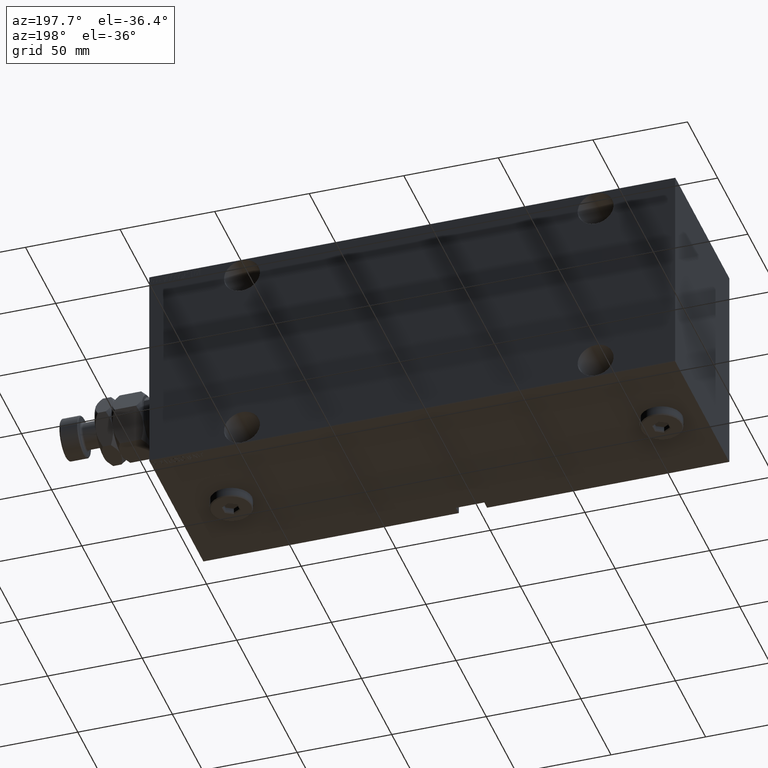
[diagram: clean part render]
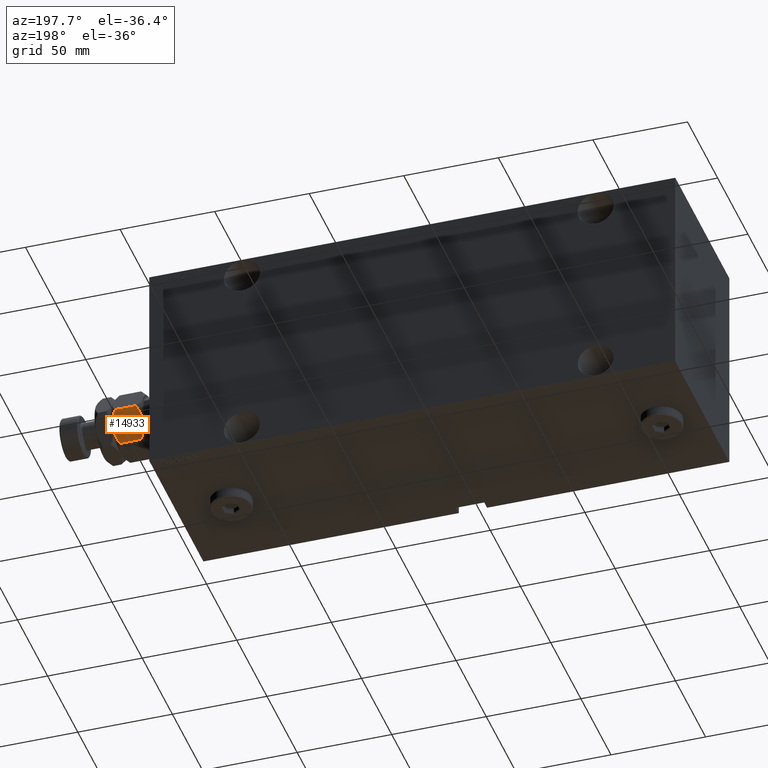
[diagram: same view with one face highlighted and labeled with its STEP entity id]
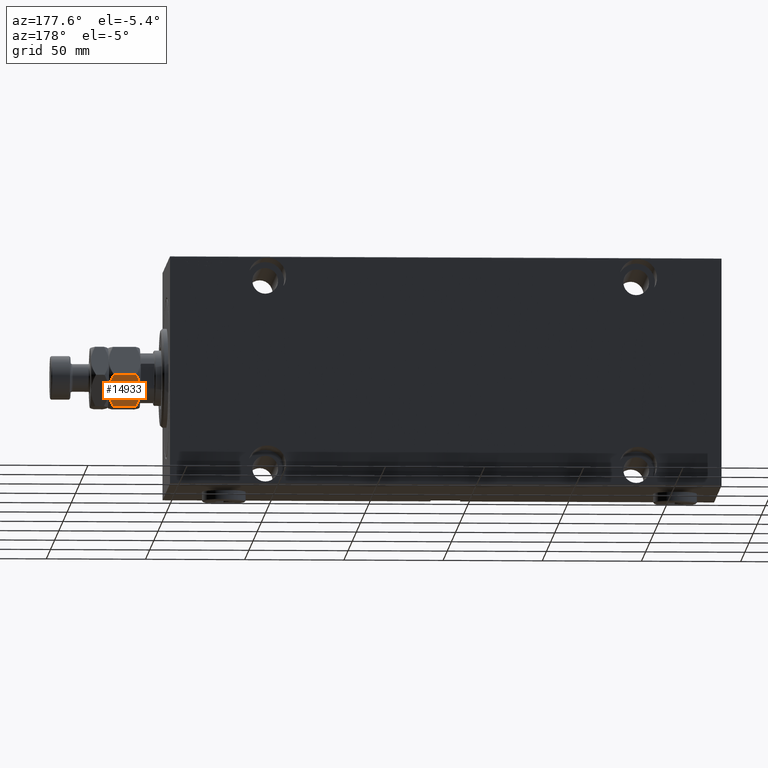
[diagram: same view with one face highlighted and labeled with its STEP entity id]
A machine part, auxiliary view. The second image highlights one B-rep face of the part: STEP entity #14933.
A second angle (auxiliary view) of the same face is appended — the face is thin or edge-on in the first view.
In plain terms, the highlighted planar face has unit normal (0, -0.866, 0.5).
Its self-contained STEP definition (entity closure, byte-faithful):
#678 = LINE ( 'NONE', #14636, #38389 ) ;
#949 = ORIENTED_EDGE ( 'NONE', *, *, #12603, .F. ) ;
#1134 = CARTESIAN_POINT ( 'NONE',  ( 7.500000000000000000, 12.99038105676657651, 16.00000000000000000 ) ) ;
#1572 = CARTESIAN_POINT ( 'NONE',  ( 1.176108425306640504, 16.64148155974179843, 1.641481559741787111 ) ) ;
#1598 = CARTESIAN_POINT ( 'NONE',  ( 4.913081180497409939, 14.48393933357810504, 15.76967007806078946 ) ) ;
#2377 = CARTESIAN_POINT ( 'NONE',  ( 8.156876182308252510, 12.61113341608665728, 16.00000000000000355 ) ) ;
#3698 = CARTESIAN_POINT ( 'NONE',  ( 10.75222765045651663, 11.11270654730956586, 15.55242859148697576 ) ) ;
#5004 = CARTESIAN_POINT ( 'NONE',  ( 8.804550678576910983, 12.23719837131869426, -5.031375706690542042E-16 ) ) ;
#5074 = CARTESIAN_POINT ( 'NONE',  ( 7.621669386706803087E-17, 17.32050807568877104, 2.320508075688761718 ) ) ;
#5747 = CARTESIAN_POINT ( 'NONE',  ( 7.621669386706803087E-17, 17.32050807568877104, 2.320508075688761718 ) ) ;
#5956 = DIRECTION ( 'NONE',  ( -0.4999999999999997780, -0.8660254037844388186, 0.000000000000000000 ) ) ;
#6893 = VERTEX_POINT ( 'NONE', #16864 ) ;
#7684 = CARTESIAN_POINT ( 'NONE',  ( 6.195449321423087241, 13.74356374221446764, 16.00000000000000355 ) ) ;
#8853 = VERTEX_POINT ( 'NONE', #21886 ) ;
#10907 = CARTESIAN_POINT ( 'NONE',  ( 7.500000000000000000, 12.99038105676657651, 16.00000000000000000 ) ) ;
#11383 = DIRECTION ( 'NONE',  ( -0.000000000000000000, -0.000000000000000000, -1.000000000000000000 ) ) ;
#12021 = ORIENTED_EDGE ( 'NONE', *, *, #22666, .T. ) ;
#12281 = CARTESIAN_POINT ( 'NONE',  ( 6.176419610670692784, 13.75455055083996214, 0.05953537397470201609 ) ) ;
#12465 = CARTESIAN_POINT ( 'NONE',  ( 15.00000000000000000, 8.660254037844389075, 16.00000000000000000 ) ) ;
#12603 = EDGE_CURVE ( 'NONE', #6893, #8853, #29901, .T. ) ;
#13583 = EDGE_CURVE ( 'NONE', #30876, #6893, #18653, .T. ) ;
#14162 = ORIENTED_EDGE ( 'NONE', *, *, #34945, .F. ) ;
#14415 = VERTEX_POINT ( 'NONE', #21630 ) ;
#14575 = AXIS2_PLACEMENT_3D ( 'NONE', #12465, #5956, #41577 ) ;
#14636 = CARTESIAN_POINT ( 'NONE',  ( 15.00000000000000000, 8.660254037844389075, 16.00000000000000000 ) ) ;
#14933 = ADVANCED_FACE ( 'NONE', ( #44130 ), #26422, .F. ) ;
#15313 = CARTESIAN_POINT ( 'NONE',  ( 15.00000000000000000, 8.660254037844389075, 13.67949192431123784 ) ) ;
#15561 = CARTESIAN_POINT ( 'NONE',  ( 2.383929548160350631, 15.94414570932928576, 14.93952096862913059 ) ) ;
#16565 = CARTESIAN_POINT ( 'NONE',  ( 8.823580389329306328, 12.22621156269319798, 15.94046462602529957 ) ) ;
#16864 = CARTESIAN_POINT ( 'NONE',  ( 7.499999999999997335, 12.99038105676658184, 0.000000000000000000 ) ) ;
#17195 = ORIENTED_EDGE ( 'NONE', *, *, #13583, .F. ) ;
#17891 = CARTESIAN_POINT ( 'NONE',  ( 13.82389157469336283, 9.339280553791368789, 14.35851844025821400 ) ) ;
#17932 = CARTESIAN_POINT ( 'NONE',  ( 0.000000000000000000, 17.32050807568877104, 16.00000000000000000 ) ) ;
#18653 = B_SPLINE_CURVE_WITH_KNOTS ( 'NONE', 3,
 ( #5074, #1572, #19719, #29984, #44180, #12281, #38369, #20182 ),
 .UNSPECIFIED., .F., .F.,
 ( 4, 2, 2, 4 ),
 ( 2.544309033652185071E-07, 0.004488823491893902638, 0.006733108022389172782, 0.008977392552884443794 ),
 .UNSPECIFIED. ) ;
#19432 = B_SPLINE_CURVE_WITH_KNOTS ( 'NONE', 3,
 ( #28591, #17891, #34503, #3698, #39327, #16565, #2377, #10907 ),
 .UNSPECIFIED., .F., .F.,
 ( 4, 2, 2, 4 ),
 ( 2.544309033641602453E-07, 0.004488823491893906975, 0.006733108022389177119, 0.008977392552884448998 ),
 .UNSPECIFIED. ) ;
#19719 = CARTESIAN_POINT ( 'NONE',  ( 2.378834511187503331, 15.94708733029709080, 1.064486067744004671 ) ) ;
#20182 = CARTESIAN_POINT ( 'NONE',  ( 7.499999999999997335, 12.99038105676658184, 0.000000000000000000 ) ) ;
#20654 = EDGE_CURVE ( 'NONE', #14415, #21924, #43931, .T. ) ;
#21630 = CARTESIAN_POINT ( 'NONE',  ( 7.500000000000000000, 12.99038105676657651, 16.00000000000000000 ) ) ;
#21886 = CARTESIAN_POINT ( 'NONE',  ( 15.00000000000000000, 8.660254037844389075, 2.320508075688765715 ) ) ;
#21924 = VERTEX_POINT ( 'NONE', #42141 ) ;
#22666 = EDGE_CURVE ( 'NONE', #24956, #8853, #678, .T. ) ;
#24701 = DIRECTION ( 'NONE',  ( -0.000000000000000000, -0.000000000000000000, -1.000000000000000000 ) ) ;
#24956 = VERTEX_POINT ( 'NONE', #15313 ) ;
#25981 = VECTOR ( 'NONE', #24701, 1000.000000000000000 ) ;
#26422 = PLANE ( 'NONE',  #14575 ) ;
#26646 = CARTESIAN_POINT ( 'NONE',  ( 12.61607045183964715, 10.03661640420386902, 1.060479031370879843 ) ) ;
#27106 = CARTESIAN_POINT ( 'NONE',  ( 7.499999999999997335, 12.99038105676658184, 0.000000000000000000 ) ) ;
#28591 = CARTESIAN_POINT ( 'NONE',  ( 15.00000000000000000, 8.660254037844389075, 13.67949192431123784 ) ) ;
#29538 = CARTESIAN_POINT ( 'NONE',  ( 1.174746544192161846, 16.64226784216984356, 14.35773215783022572 ) ) ;
#29901 = B_SPLINE_CURVE_WITH_KNOTS ( 'NONE', 3,
 ( #27106, #5004, #37147, #26646, #33870, #37388 ),
 .UNSPECIFIED., .F., .F.,
 ( 4, 2, 4 ),
 ( 0.008977392552884443794, 0.01343452311421656532, 0.01789165367554868685 ),
 .UNSPECIFIED. ) ;
#29984 = CARTESIAN_POINT ( 'NONE',  ( 4.247772349543482484, 14.86805556622358893, 0.4475714085130255149 ) ) ;
#30876 = VERTEX_POINT ( 'NONE', #5747 ) ;
#31928 = LINE ( 'NONE', #17932, #25981 ) ;
#33870 = CARTESIAN_POINT ( 'NONE',  ( 13.82525345580783949, 9.338494271363313004, 1.642267842169781833 ) ) ;
#34503 = CARTESIAN_POINT ( 'NONE',  ( 12.62116548881249756, 10.03367478323606221, 14.93551393225599710 ) ) ;
#34945 = EDGE_CURVE ( 'NONE', #21924, #30876, #31928, .T. ) ;
#35887 = EDGE_CURVE ( 'NONE', #24956, #14415, #19432, .T. ) ;
#37147 = CARTESIAN_POINT ( 'NONE',  ( 10.08691881950258740, 11.49682277995505331, 0.2303299219392160591 ) ) ;
#37388 = CARTESIAN_POINT ( 'NONE',  ( 15.00000000000000000, 8.660254037844389075, 2.320508075688765715 ) ) ;
#38369 = CARTESIAN_POINT ( 'NONE',  ( 6.843123817691747490, 13.36962869744650639, -3.557538378468061917E-16 ) ) ;
#38389 = VECTOR ( 'NONE', #11383, 1000.000000000000000 ) ;
#38761 = EDGE_LOOP ( 'NONE', ( #17195, #14162, #44899, #39198, #12021, #949 ) ) ;
#39198 = ORIENTED_EDGE ( 'NONE', *, *, #35887, .F. ) ;
#39327 = CARTESIAN_POINT ( 'NONE',  ( 10.11832554202262457, 11.47869010025374514, 15.71619733805371411 ) ) ;
#41577 = DIRECTION ( 'NONE',  ( 0.8660254037844387076, -0.4999999999999997224, 0.000000000000000000 ) ) ;
#42141 = CARTESIAN_POINT ( 'NONE',  ( 3.803331551779305683E-16, 17.32050807568877104, 13.67949192431124317 ) ) ;
#43746 = CARTESIAN_POINT ( 'NONE',  ( 3.803331551779305683E-16, 17.32050807568877104, 13.67949192431124317 ) ) ;
#43931 = B_SPLINE_CURVE_WITH_KNOTS ( 'NONE', 3,
 ( #1134, #7684, #1598, #15561, #29538, #43746 ),
 .UNSPECIFIED., .F., .F.,
 ( 4, 2, 4 ),
 ( 0.008977392552884448998, 0.01343452311421656706, 0.01789165367554868338 ),
 .UNSPECIFIED. ) ;
#44130 = FACE_OUTER_BOUND ( 'NONE', #38761, .T. ) ;
#44180 = CARTESIAN_POINT ( 'NONE',  ( 4.881674457977373649, 14.50207201327941320, 0.2838026619462936107 ) ) ;
#44899 = ORIENTED_EDGE ( 'NONE', *, *, #20654, .F. ) ;